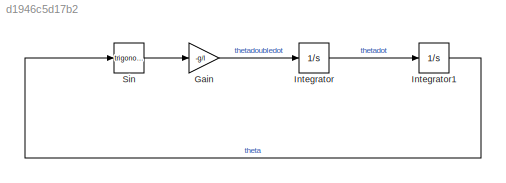
MODEL slx_d1946c5d17b2
KIND model
CONFIG AbsTol = auto
CONFIG EnableMultiTasking = off
CONFIG FixedStep = auto
CONFIG MaxStep = 1e-3
CONFIG MinStep = auto
CONFIG RelTol = 1e-3
CONFIG SampleTimeConstraint = Unconstrained
CONFIG SolverName = VariableStepAuto
CONFIG StartTime = 0.0
CONFIG StopTime = TimeStop
BLOCK [Gain] Gain
  Gain = -g/l
BLOCK [Integrator] Integrator
BLOCK [Integrator] Integrator1
  InitialCondition = x0
BLOCK [Trigonometry] Sin
LINE Gain:1 -> Integrator:1
LINE Integrator1:1 -> Sin:1
LINE Integrator:1 -> Integrator1:1
LINE Sin:1 -> Gain:1
